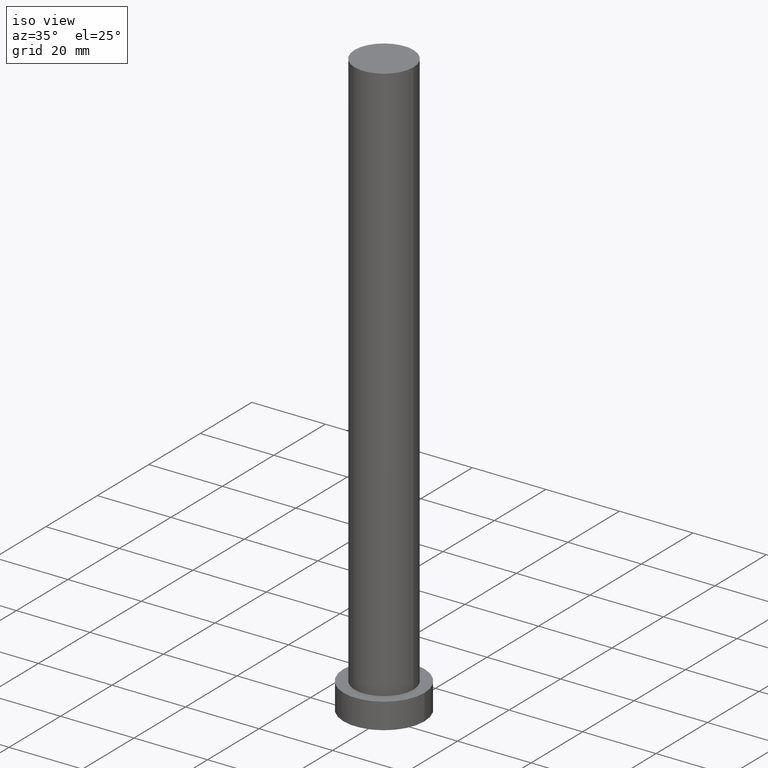
[diagram: clean part render]
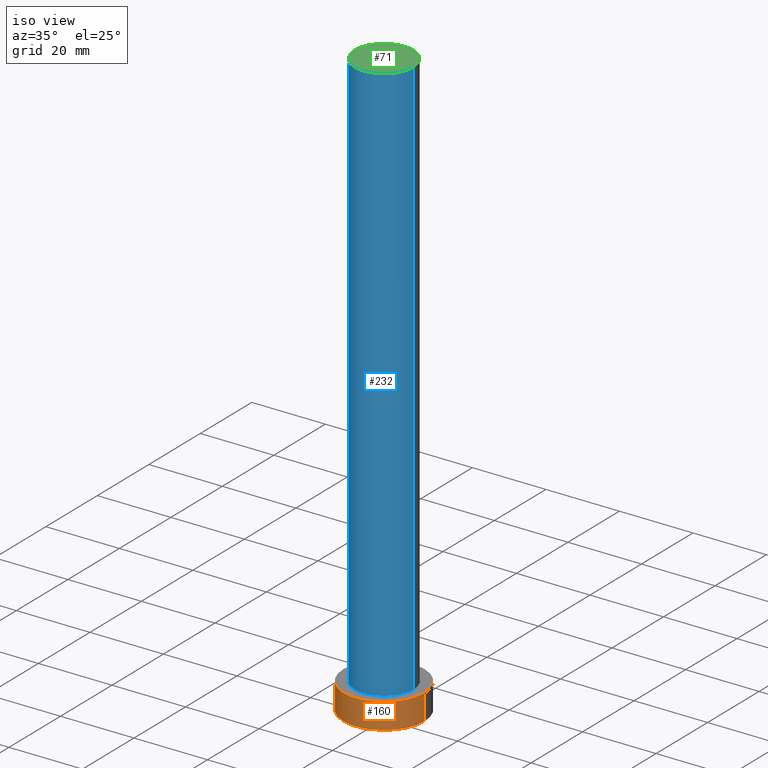
[diagram: same view with three faces highlighted in distinct colors, each labeled with its STEP entity id]
A machine part, iso view with three faces highlighted in distinct colors.
Their STEP definitions:

[orange] entity #160 — the highlighted cylindrical surface (partial cylindrical patch) has radius 11 mm, axis along (-0, -0, -1).
#14 = CARTESIAN_POINT ( 'NONE',  ( -11.00000000000000000, 0.000000000000000000, 7.000000000000000000 ) ) ;
#17 = DIRECTION ( 'NONE',  ( 0.000000000000000000, 0.000000000000000000, 1.000000000000000000 ) ) ;
#21 = VERTEX_POINT ( 'NONE', #93 ) ;
#22 = ORIENTED_EDGE ( 'NONE', *, *, #142, .T. ) ;
#30 = DIRECTION ( 'NONE',  ( 1.000000000000000000, 0.000000000000000000, 0.000000000000000000 ) ) ;
#32 = VERTEX_POINT ( 'NONE', #69 ) ;
#35 = EDGE_CURVE ( 'NONE', #199, #21, #222, .T. ) ;
#37 = DIRECTION ( 'NONE',  ( -0.000000000000000000, -0.000000000000000000, -1.000000000000000000 ) ) ;
#60 = LINE ( 'NONE', #215, #216 ) ;
#69 = CARTESIAN_POINT ( 'NONE',  ( -11.00000000000000000, 0.000000000000000000, 0.000000000000000000 ) ) ;
#81 = CARTESIAN_POINT ( 'NONE',  ( 11.00000000000000000, 1.347111479062088405E-15, 0.000000000000000000 ) ) ;
#93 = CARTESIAN_POINT ( 'NONE',  ( 11.00000000000000000, 1.347111479062088405E-15, 7.000000000000000000 ) ) ;
#99 = CIRCLE ( 'NONE', #145, 11.00000000000000000 ) ;
#100 = CYLINDRICAL_SURFACE ( 'NONE', #173, 11.00000000000000000 ) ;
#120 = CARTESIAN_POINT ( 'NONE',  ( 0.000000000000000000, 0.000000000000000000, 0.000000000000000000 ) ) ;
#126 = EDGE_LOOP ( 'NONE', ( #165, #181, #22, #169 ) ) ;
#133 = DIRECTION ( 'NONE',  ( -0.000000000000000000, -0.000000000000000000, -1.000000000000000000 ) ) ;
#135 = DIRECTION ( 'NONE',  ( -0.000000000000000000, -0.000000000000000000, -1.000000000000000000 ) ) ;
#138 = FACE_OUTER_BOUND ( 'NONE', #126, .T. ) ;
#142 = EDGE_CURVE ( 'NONE', #199, #32, #155, .T. ) ;
#145 = AXIS2_PLACEMENT_3D ( 'NONE', #120, #17, #30 ) ;
#150 = VERTEX_POINT ( 'NONE', #81 ) ;
#155 = LINE ( 'NONE', #14, #183 ) ;
#158 = CARTESIAN_POINT ( 'NONE',  ( 0.000000000000000000, 0.000000000000000000, 7.000000000000000000 ) ) ;
#160 = ADVANCED_FACE ( 'NONE', ( #138 ), #100, .T. ) ;
#165 = ORIENTED_EDGE ( 'NONE', *, *, #202, .F. ) ;
#168 = DIRECTION ( 'NONE',  ( 0.000000000000000000, 0.000000000000000000, 1.000000000000000000 ) ) ;
#169 = ORIENTED_EDGE ( 'NONE', *, *, #224, .T. ) ;
#173 = AXIS2_PLACEMENT_3D ( 'NONE', #158, #37, #252 ) ;
#181 = ORIENTED_EDGE ( 'NONE', *, *, #35, .F. ) ;
#183 = VECTOR ( 'NONE', #133, 1000.000000000000000 ) ;
#184 = DIRECTION ( 'NONE',  ( 1.000000000000000000, 0.000000000000000000, 0.000000000000000000 ) ) ;
#189 = CARTESIAN_POINT ( 'NONE',  ( 0.000000000000000000, 0.000000000000000000, 7.000000000000000000 ) ) ;
#199 = VERTEX_POINT ( 'NONE', #236 ) ;
#202 = EDGE_CURVE ( 'NONE', #21, #150, #60, .T. ) ;
#208 = AXIS2_PLACEMENT_3D ( 'NONE', #189, #168, #184 ) ;
#215 = CARTESIAN_POINT ( 'NONE',  ( 11.00000000000000000, 1.347111479062088405E-15, 7.000000000000000000 ) ) ;
#216 = VECTOR ( 'NONE', #135, 1000.000000000000000 ) ;
#222 = CIRCLE ( 'NONE', #208, 11.00000000000000000 ) ;
#224 = EDGE_CURVE ( 'NONE', #32, #150, #99, .T. ) ;
#236 = CARTESIAN_POINT ( 'NONE',  ( -11.00000000000000000, 0.000000000000000000, 7.000000000000000000 ) ) ;
#252 = DIRECTION ( 'NONE',  ( -1.000000000000000000, 0.000000000000000000, 0.000000000000000000 ) ) ;

[blue] entity #232 — the highlighted cylindrical surface (edge-blend (fillet) strip) has radius 8 mm, axis along (-0, -0, -1).
#12 = CARTESIAN_POINT ( 'NONE',  ( 0.000000000000000000, 0.000000000000000000, 160.0000000000000000 ) ) ;
#20 = EDGE_CURVE ( 'NONE', #250, #86, #29, .T. ) ;
#29 = CIRCLE ( 'NONE', #163, 8.000000000000000000 ) ;
#36 = CARTESIAN_POINT ( 'NONE',  ( 8.000000000000000000, 9.797174393178825657E-16, 160.0000000000000000 ) ) ;
#38 = VECTOR ( 'NONE', #175, 1000.000000000000000 ) ;
#45 = CIRCLE ( 'NONE', #104, 8.000000000000000000 ) ;
#48 = DIRECTION ( 'NONE',  ( -0.000000000000000000, -0.000000000000000000, -1.000000000000000000 ) ) ;
#55 = DIRECTION ( 'NONE',  ( 1.000000000000000000, 0.000000000000000000, 0.000000000000000000 ) ) ;
#57 = DIRECTION ( 'NONE',  ( 0.000000000000000000, 0.000000000000000000, 1.000000000000000000 ) ) ;
#65 = VERTEX_POINT ( 'NONE', #207 ) ;
#67 = VECTOR ( 'NONE', #48, 1000.000000000000000 ) ;
#72 = ORIENTED_EDGE ( 'NONE', *, *, #139, .T. ) ;
#78 = LINE ( 'NONE', #171, #38 ) ;
#82 = EDGE_CURVE ( 'NONE', #86, #115, #95, .T. ) ;
#86 = VERTEX_POINT ( 'NONE', #36 ) ;
#95 = LINE ( 'NONE', #144, #67 ) ;
#104 = AXIS2_PLACEMENT_3D ( 'NONE', #234, #57, #118 ) ;
#110 = ORIENTED_EDGE ( 'NONE', *, *, #114, .T. ) ;
#111 = CARTESIAN_POINT ( 'NONE',  ( -8.000000000000000000, 0.000000000000000000, 160.0000000000000000 ) ) ;
#113 = CARTESIAN_POINT ( 'NONE',  ( 0.000000000000000000, 0.000000000000000000, 160.0000000000000000 ) ) ;
#114 = EDGE_CURVE ( 'NONE', #250, #65, #78, .T. ) ;
#115 = VERTEX_POINT ( 'NONE', #176 ) ;
#117 = CYLINDRICAL_SURFACE ( 'NONE', #179, 8.000000000000000000 ) ;
#118 = DIRECTION ( 'NONE',  ( 1.000000000000000000, 0.000000000000000000, 0.000000000000000000 ) ) ;
#130 = DIRECTION ( 'NONE',  ( -0.000000000000000000, -0.000000000000000000, -1.000000000000000000 ) ) ;
#131 = ORIENTED_EDGE ( 'NONE', *, *, #82, .F. ) ;
#139 = EDGE_CURVE ( 'NONE', #65, #115, #45, .T. ) ;
#143 = EDGE_LOOP ( 'NONE', ( #131, #243, #110, #72 ) ) ;
#144 = CARTESIAN_POINT ( 'NONE',  ( 8.000000000000000000, 9.797174393178825657E-16, 160.0000000000000000 ) ) ;
#163 = AXIS2_PLACEMENT_3D ( 'NONE', #12, #247, #55 ) ;
#171 = CARTESIAN_POINT ( 'NONE',  ( -8.000000000000000000, 0.000000000000000000, 160.0000000000000000 ) ) ;
#175 = DIRECTION ( 'NONE',  ( -0.000000000000000000, -0.000000000000000000, -1.000000000000000000 ) ) ;
#176 = CARTESIAN_POINT ( 'NONE',  ( 8.000000000000000000, 9.797174393178825657E-16, 7.000000000000000000 ) ) ;
#179 = AXIS2_PLACEMENT_3D ( 'NONE', #113, #130, #190 ) ;
#190 = DIRECTION ( 'NONE',  ( -1.000000000000000000, 0.000000000000000000, 0.000000000000000000 ) ) ;
#207 = CARTESIAN_POINT ( 'NONE',  ( -8.000000000000000000, 0.000000000000000000, 7.000000000000000000 ) ) ;
#211 = FACE_OUTER_BOUND ( 'NONE', #143, .T. ) ;
#232 = ADVANCED_FACE ( 'NONE', ( #211 ), #117, .T. ) ;
#234 = CARTESIAN_POINT ( 'NONE',  ( 0.000000000000000000, 0.000000000000000000, 7.000000000000000000 ) ) ;
#243 = ORIENTED_EDGE ( 'NONE', *, *, #20, .F. ) ;
#247 = DIRECTION ( 'NONE',  ( 0.000000000000000000, 0.000000000000000000, 1.000000000000000000 ) ) ;
#250 = VERTEX_POINT ( 'NONE', #111 ) ;

[green] entity #71 — the highlighted planar face has unit normal (0, 0, 1).
#12 = CARTESIAN_POINT ( 'NONE',  ( 0.000000000000000000, 0.000000000000000000, 160.0000000000000000 ) ) ;
#20 = EDGE_CURVE ( 'NONE', #250, #86, #29, .T. ) ;
#29 = CIRCLE ( 'NONE', #163, 8.000000000000000000 ) ;
#36 = CARTESIAN_POINT ( 'NONE',  ( 8.000000000000000000, 9.797174393178825657E-16, 160.0000000000000000 ) ) ;
#47 = EDGE_LOOP ( 'NONE', ( #225, #106 ) ) ;
#55 = DIRECTION ( 'NONE',  ( 1.000000000000000000, 0.000000000000000000, 0.000000000000000000 ) ) ;
#59 = DIRECTION ( 'NONE',  ( 1.000000000000000000, 0.000000000000000000, 0.000000000000000000 ) ) ;
#71 = ADVANCED_FACE ( 'NONE', ( #88 ), #191, .T. ) ;
#86 = VERTEX_POINT ( 'NONE', #36 ) ;
#88 = FACE_OUTER_BOUND ( 'NONE', #47, .T. ) ;
#98 = DIRECTION ( 'NONE',  ( 0.000000000000000000, 0.000000000000000000, 1.000000000000000000 ) ) ;
#101 = CARTESIAN_POINT ( 'NONE',  ( 0.000000000000000000, 0.000000000000000000, 160.0000000000000000 ) ) ;
#106 = ORIENTED_EDGE ( 'NONE', *, *, #196, .T. ) ;
#111 = CARTESIAN_POINT ( 'NONE',  ( -8.000000000000000000, 0.000000000000000000, 160.0000000000000000 ) ) ;
#141 = AXIS2_PLACEMENT_3D ( 'NONE', #204, #98, #162 ) ;
#157 = DIRECTION ( 'NONE',  ( 0.000000000000000000, 0.000000000000000000, 1.000000000000000000 ) ) ;
#162 = DIRECTION ( 'NONE',  ( 1.000000000000000000, 0.000000000000000000, -0.000000000000000000 ) ) ;
#163 = AXIS2_PLACEMENT_3D ( 'NONE', #12, #247, #55 ) ;
#191 = PLANE ( 'NONE',  #141 ) ;
#196 = EDGE_CURVE ( 'NONE', #86, #250, #231, .T. ) ;
#203 = AXIS2_PLACEMENT_3D ( 'NONE', #101, #157, #59 ) ;
#204 = CARTESIAN_POINT ( 'NONE',  ( 0.000000000000000000, 0.000000000000000000, 160.0000000000000000 ) ) ;
#225 = ORIENTED_EDGE ( 'NONE', *, *, #20, .T. ) ;
#231 = CIRCLE ( 'NONE', #203, 8.000000000000000000 ) ;
#247 = DIRECTION ( 'NONE',  ( 0.000000000000000000, 0.000000000000000000, 1.000000000000000000 ) ) ;
#250 = VERTEX_POINT ( 'NONE', #111 ) ;